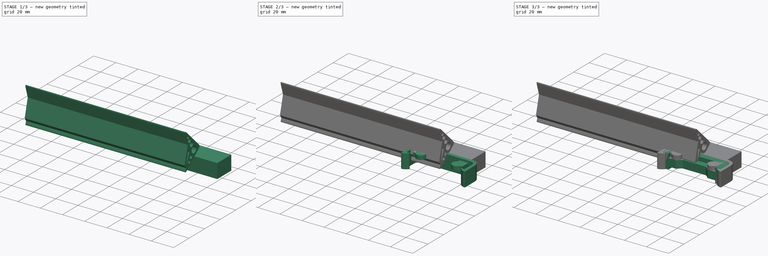
[diagram: build sequence overview — one tinted view per stage of 3, left to right]
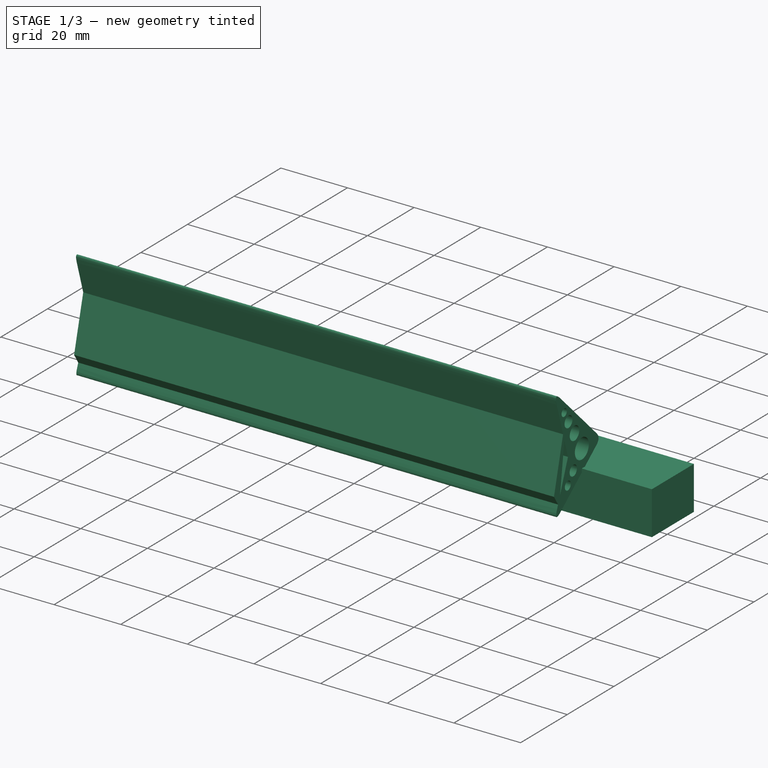
[diagram: stage 1 of 3 — iso view after this stage's code; geometry added in this stage tinted green]
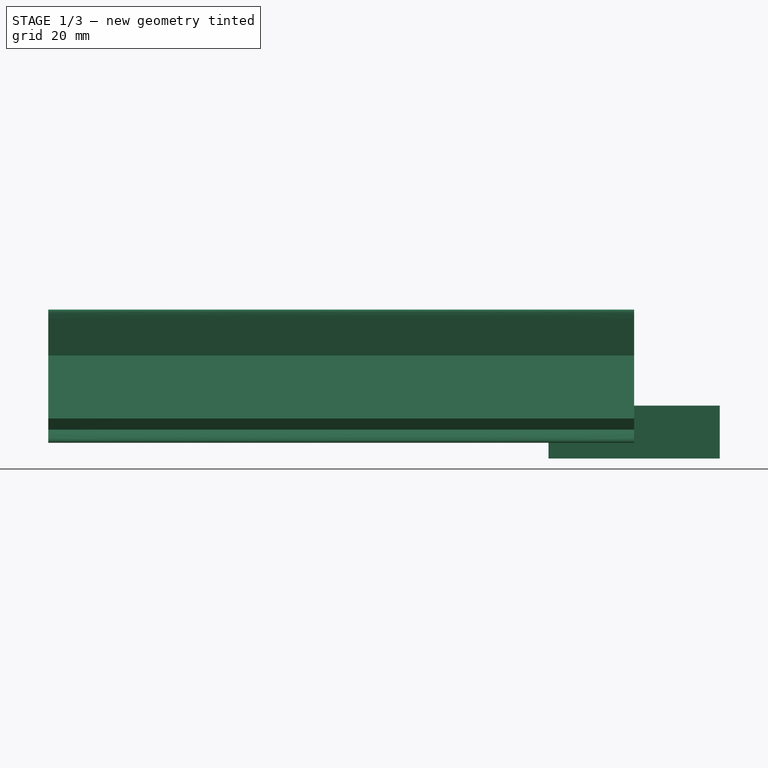
[diagram: stage 1 of 3 — front view after this stage's code; geometry added in this stage tinted green]
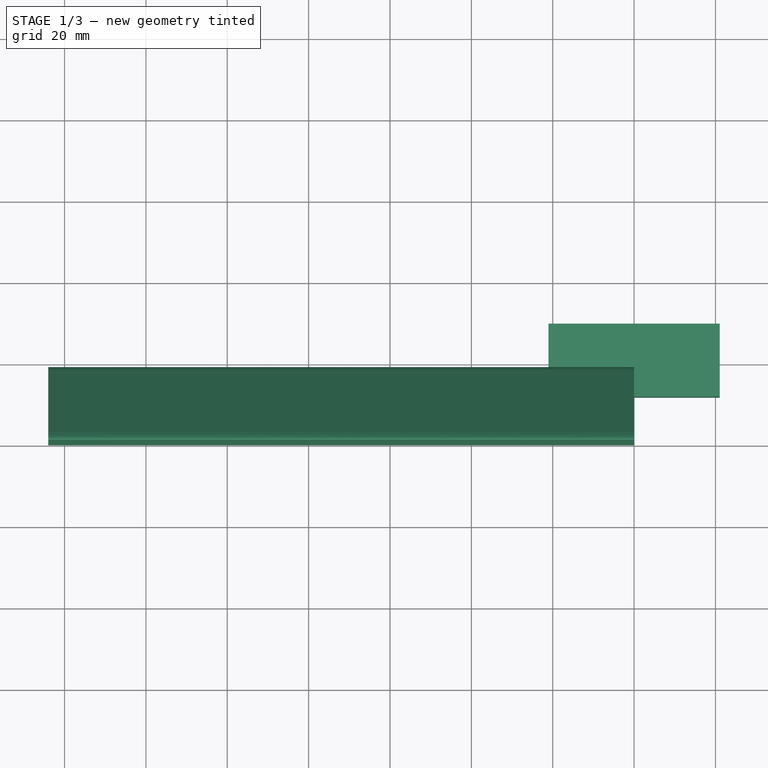
[diagram: stage 1 of 3 — top view after this stage's code; geometry added in this stage tinted green]
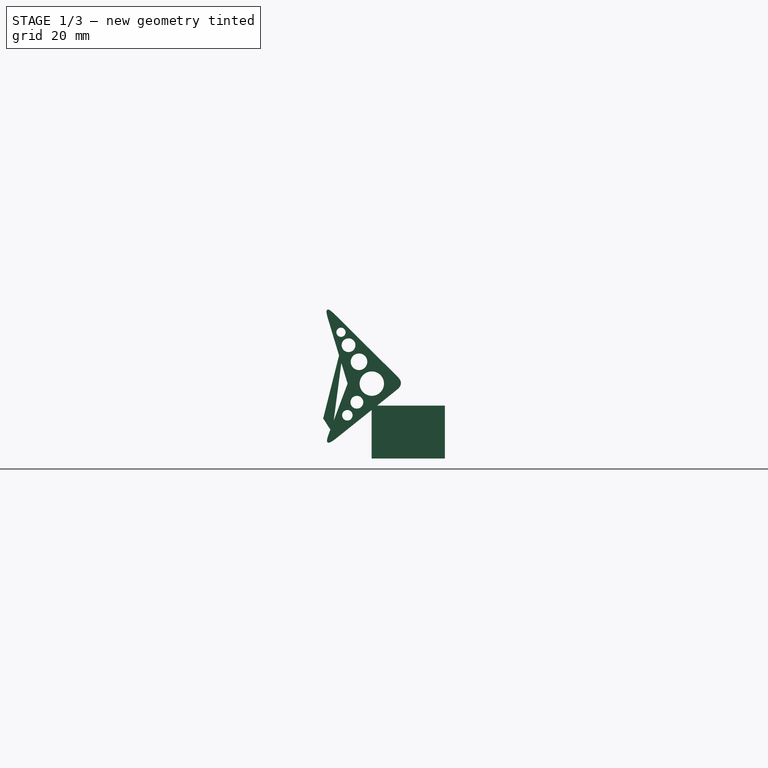
[diagram: stage 1 of 3 — right view after this stage's code; geometry added in this stage tinted green]
FCSTD DOCUMENT  (FreeCAD 0.19R0.19.2)
Label: 015
License: All rights reserved
LicenseURL: http://en.wikipedia.org/wiki/All_rights_reserved
objects: Sketcher::SketchObject×5, Part::Extrusion×5, Part::Box×1
note: 11 computed .brp shape members not serialized (recipe doc carries the construction recipe); baked Part::Feature solids carry a one-line shape summary decoded from their .brp

FEATURE [Part::Box] Box  label="bumpperExtension"
  AttacherType = Attacher::AttachEngine3D
  Height = 13
  Length = 42.1
  Placement = pos=(-21.05,11.9,-2.4) rot=(0,0,1;0rad)
  Width = 18
FEATURE [Sketcher::SketchObject] Sketch004  label="bumpperMain"
  FullyConstrained = true
  Placement = pos=(0,0,0) rot=(0.57735,0.57735,0.57735;2.0944rad)
  sketch-geometry (33):
    g0: Circle CenterX=-3.12329 CenterY=2.49901 CenterZ=0 NormalX=0 NormalY=0 NormalZ=1 AngleXU=0 Radius=1
    g1: Circle CenterX=0 CenterY=0 CenterZ=0 NormalX=0 NormalY=0 NormalZ=1 AngleXU=0 Radius=1
    g2: Circle CenterX=-1.35243 CenterY=3.60648 CenterZ=0 NormalX=0 NormalY=0 NormalZ=1 AngleXU=0 Radius=1
    g3: BSplineCurve PolesCount=3 KnotsCount=2 Degree=2 IsPeriodic=0
    g4: GeomPoint X=-3.12329 Y=2.49901 Z=0
    g5: GeomPoint X=-1.35243 Y=3.60648 Z=0
    g6: LineSegment StartX=-1.35243 StartY=3.60648 StartZ=0 EndX=-1.76142 EndY=4.69712 EndZ=0
    g7: LineSegment StartX=-6 StartY=16 StartZ=0 EndX=-4.46356 EndY=21.0814 EndZ=0
    g8: Circle CenterX=-2.83953 CenterY=33.0261 CenterZ=0 NormalX=0 NormalY=0 NormalZ=1 AngleXU=0 Radius=1
    g9: Circle CenterX=0 CenterY=35.8434 CenterZ=0 NormalX=0 NormalY=0 NormalZ=1 AngleXU=0 Radius=1
    g10: Circle CenterX=-1.15771 CenterY=32.0146 CenterZ=0 NormalX=0 NormalY=0 NormalZ=1 AngleXU=0 Radius=1
    g11: BSplineCurve PolesCount=3 KnotsCount=2 Degree=2 IsPeriodic=0
    g12: GeomPoint X=-2.83953 Y=33.0261 Z=0
    g13: GeomPoint X=-1.15771 Y=32.0146 Z=0
    g14: Circle CenterX=-18.2963 CenterY=17.6904 CenterZ=0 NormalX=0 NormalY=0 NormalZ=1 AngleXU=0 Radius=1
    g15: Circle CenterX=-20 CenterY=16 CenterZ=0 NormalX=0 NormalY=0 NormalZ=1 AngleXU=0 Radius=1
    g16: Circle CenterX=-18.1259 CenterY=14.5008 CenterZ=0 NormalX=0 NormalY=0 NormalZ=1 AngleXU=0 Radius=1
    g17: BSplineCurve PolesCount=3 KnotsCount=2 Degree=2 IsPeriodic=0
    g18: GeomPoint X=-18.2963 Y=17.6904 Z=0
    g19: GeomPoint X=-18.1259 Y=14.5008 Z=0
    g20: LineSegment StartX=-18.2963 StartY=17.6904 StartZ=0 EndX=-2.83953 EndY=33.0261 EndZ=0
    g21: LineSegment StartX=-18.1259 StartY=14.5008 StartZ=0 EndX=-3.12329 EndY=2.49901 EndZ=0
    g22: Circle CenterX=-11.9527 CenterY=16 CenterZ=0 NormalX=0 NormalY=0 NormalZ=1 AngleXU=0 Radius=2.99582
    g23: Circle CenterX=-8.803 CenterY=21.3731 CenterZ=0 NormalX=0 NormalY=0 NormalZ=1 AngleXU=0 Radius=2.03939
    g24: Circle CenterX=-6.23123 CenterY=25.4475 CenterZ=0 NormalX=0 NormalY=0 NormalZ=1 AngleXU=0 Radius=1.69309
    g25: Circle CenterX=-4.38186 CenterY=28.6261 CenterZ=0 NormalX=0 NormalY=0 NormalZ=1 AngleXU=0 Radius=1.13029
    g26: Circle CenterX=-8.28033 CenterY=11.4296 CenterZ=0 NormalX=0 NormalY=0 NormalZ=1 AngleXU=0 Radius=1.57213
    g27: Circle CenterX=-5.93972 CenterY=8.22213 CenterZ=0 NormalX=0 NormalY=0 NormalZ=1 AngleXU=0 Radius=1.28743
    g28: LineSegment StartX=-4.46356 StartY=21.0814 StartZ=0 EndX=-2.58497 EndY=6.89324 EndZ=0
    g29: LineSegment StartX=0 StartY=7.44228 StartZ=0 EndX=-3.90437 EndY=22.9307 EndZ=0
    g30: LineSegment StartX=0 StartY=7.44228 StartZ=0 EndX=-1.76142 EndY=4.69712 EndZ=0
    g31: LineSegment StartX=-3.90437 StartY=22.9307 StartZ=0 EndX=-1.15771 EndY=32.0146 EndZ=0
    g32: LineSegment StartX=-2.58497 StartY=6.89324 StartZ=0 EndX=-6 EndY=16 EndZ=0
  constraints (54):
    c: Weight(g0) = 1
    c: Equal(g0,g1)
    c: Equal(g0,g2)
    c: InternalAlignment(g0,g3)
    c: InternalAlignment(g1,g3)
    c: InternalAlignment(g2,g3)
    c: InternalAlignment(g4,g3)
    c: InternalAlignment(g5,g3)
    c: Block(g3)
    c: Coincident(g6,g3)
    c: Block(g6)
    c: Coincident(g7,g32)
    c: Weight(g8) = 1
    c: Equal(g8,g9)
    c: Equal(g8,g10)
    c: InternalAlignment(g8,g11)
    c: InternalAlignment(g9,g11)
    c: InternalAlignment(g10,g11)
    c: InternalAlignment(g12,g11)
    c: InternalAlignment(g13,g11)
    c: Block(g11)
    c: Block(g7)
    c: Weight(g14) = 1
    c: Equal(g14,g15)
    c: Equal(g14,g16)
    c: InternalAlignment(g14,g17)
    c: InternalAlignment(g15,g17)
    c: InternalAlignment(g16,g17)
    c: InternalAlignment(g18,g17)
    c: InternalAlignment(g19,g17)
    c: Block(g17)
    c: Coincident(g20,g17)
    c: Coincident(g20,g11)
    c: Coincident(g21,g17)
    c: Coincident(g21,g3)
    c: PointOnObject(g29,g-2)
    c: Coincident(g30,g29)
    c: Block(g29)
    c: Block(g30)
    c: Block(g28)
    c: Block(g27)
    c: Block(g26)
    c: Block(g22)
    c: Block(g23)
    c: Block(g24)
    c: Block(g25)
    c: Coincident(g7,g28)
    c: Coincident(g31,g29)
    c: Tangent(g7,g31)
    c: Coincident(g6,g30)
    c: Coincident(g32,g28)
    c: Tangent(g6,g32)
    c: Block(g32)
    c: Block(g31)
FEATURE [Part::Extrusion] Extrude004  label="bumpperMain001"
  Base = -> Sketch004
  Dir = (1,0,0)
  DirMode = 2
  FaceMakerClass = Part::FaceMakerBullseye
  LengthFwd = 144
  LengthRev = 0
  Placement = pos=(0,0,0) rot=(0,0,1;3.14159rad)
  Solid = true
  Symmetric = false
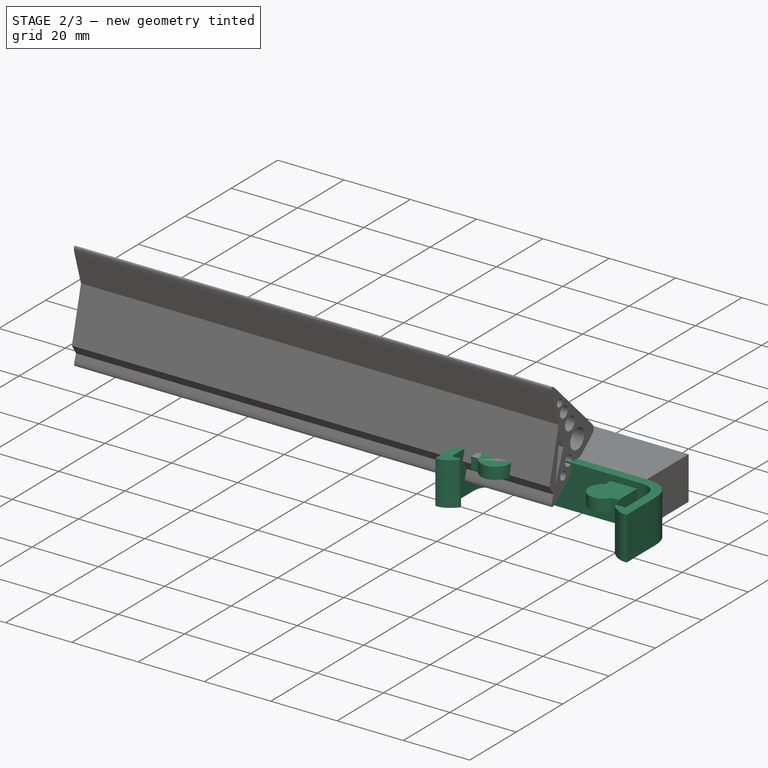
[diagram: stage 2 of 3 — iso view after this stage's code; geometry added in this stage tinted green]
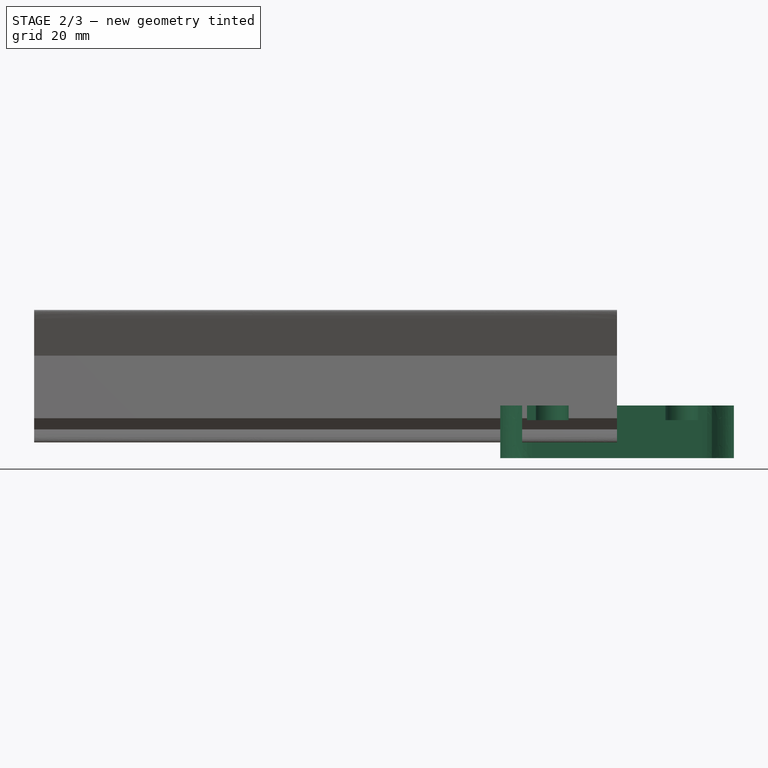
[diagram: stage 2 of 3 — front view after this stage's code; geometry added in this stage tinted green]
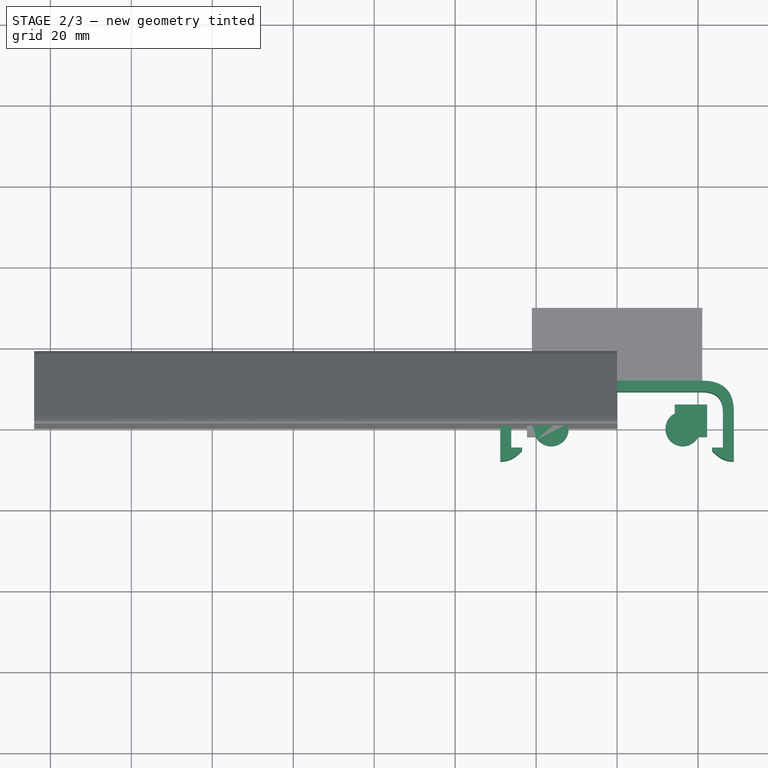
[diagram: stage 2 of 3 — top view after this stage's code; geometry added in this stage tinted green]
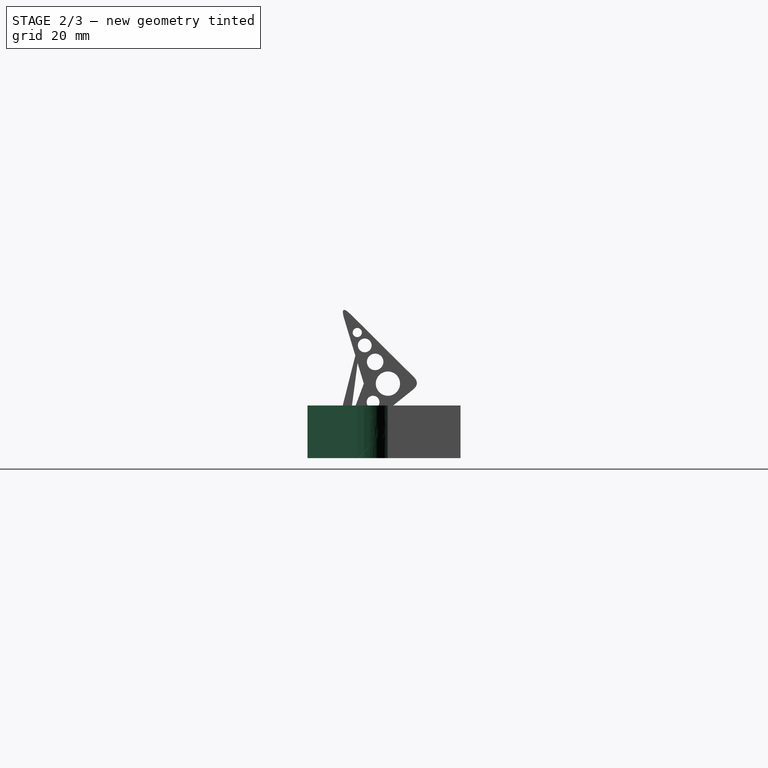
[diagram: stage 2 of 3 — right view after this stage's code; geometry added in this stage tinted green]
FEATURE [Sketcher::SketchObject] Sketch002  label="attatchmentPieceEndScrewHoleCaps"
  FullyConstrained = true
  sketch-geometry (10):
    g0: ArcOfCircle CenterX=16.25 CenterY=0 CenterZ=0 NormalX=0 NormalY=0 NormalZ=1 AngleXU=0 Radius=4.3 StartAngle=2.05456 EndAngle=5.79942
    g1: ArcOfCircle CenterX=-16.25 CenterY=0 CenterZ=0 NormalX=0 NormalY=0 NormalZ=1 AngleXU=0 Radius=4.3 StartAngle=3.62536 EndAngle=7.37022
    g2: LineSegment StartX=14.25 StartY=3.80657 StartZ=0 EndX=14.25 EndY=6 EndZ=0
    g3: LineSegment StartX=20.0566 StartY=-2 StartZ=0 EndX=22.25 EndY=-2 EndZ=0
    g4: LineSegment StartX=-22.25 StartY=-2 StartZ=0 EndX=-20.0566 EndY=-2 EndZ=0
    g5: LineSegment StartX=-14.25 StartY=3.80657 StartZ=0 EndX=-14.25 EndY=6 EndZ=0
    g6: LineSegment StartX=-14.25 StartY=6 StartZ=0 EndX=-22.25 EndY=6 EndZ=0
    g7: LineSegment StartX=-22.25 StartY=-2 StartZ=0 EndX=-22.25 EndY=6 EndZ=0
    g8: LineSegment StartX=22.25 StartY=-2 StartZ=0 EndX=22.25 EndY=6 EndZ=0
    g9: LineSegment StartX=14.25 StartY=6 StartZ=0 EndX=22.25 EndY=6 EndZ=0
  constraints (25):
    c: Block(g1)
    c: Block(g0)
    c: Vertical(g2)
    c: Horizontal(g3)
    c: Horizontal(g4)
    c: Vertical(g5)
    c: Coincident(g6,g5)
    c: Horizontal(g6)
    c: Coincident(g7,g4)
    c: Vertical(g7)
    c: Coincident(g8,g3)
    c: Vertical(g8)
    c: Coincident(g9,g2)
    c: Horizontal(g9)
    c: Coincident(g7,g6)
    c: Coincident(g8,g9)
    c: Block(g9)
    c: Block(g8)
    c: Block(g6)
    c: Block(g7)
    c: Coincident(g1,g4)
    c: Coincident(g1,g5)
    c: Coincident(g0,g2)
    c: Coincident(g0,g3)
    c: Block(g2)
FEATURE [Part::Extrusion] Extrude002  label="attatchmentPieceEndScrewHoleCaps001"
  Base = -> Sketch002
  Dir = (0,0,1)
  DirMode = 2
  FaceMakerClass = Part::FaceMakerBullseye
  LengthFwd = 3.6
  LengthRev = 0
  Placement = pos=(0,0,7) rot=(0,0,1;0rad)
  Solid = true
  Symmetric = false
FEATURE [Sketcher::SketchObject] Sketch003  label="mainBumpperPieceAttatchment"
  FullyConstrained = true
  sketch-geometry (50):
    g0: Circle CenterX=28.85 CenterY=4.3 CenterZ=0 NormalX=0 NormalY=0 NormalZ=1 AngleXU=0 Radius=1
    g1: Circle CenterX=28.85 CenterY=11.9 CenterZ=0 NormalX=0 NormalY=0 NormalZ=1 AngleXU=0 Radius=1
    g2: Circle CenterX=21.05 CenterY=11.9 CenterZ=0 NormalX=0 NormalY=0 NormalZ=1 AngleXU=0 Radius=1
    g3: BSplineCurve PolesCount=3 KnotsCount=2 Degree=2 IsPeriodic=0
    g4: GeomPoint X=28.85 Y=4.3 Z=0
    g5: GeomPoint X=21.05 Y=11.9 Z=0
    g6: Circle CenterX=-28.85 CenterY=4.3 CenterZ=0 NormalX=0 NormalY=0 NormalZ=1 AngleXU=0 Radius=1
    g7: Circle CenterX=-28.85 CenterY=11.9 CenterZ=0 NormalX=0 NormalY=0 NormalZ=1 AngleXU=0 Radius=1
    g8: Circle CenterX=-21.05 CenterY=11.9 CenterZ=0 NormalX=0 NormalY=0 NormalZ=1 AngleXU=0 Radius=1
    g9: BSplineCurve PolesCount=3 KnotsCount=2 Degree=2 IsPeriodic=0
    g10: GeomPoint X=-28.85 Y=4.3 Z=0
    g11: GeomPoint X=-21.05 Y=11.9 Z=0
    g12: LineSegment StartX=-28.85 StartY=4.3 StartZ=0 EndX=-28.85 EndY=-4.3 EndZ=0
    g13: LineSegment StartX=-21.05 StartY=11.9 StartZ=0 EndX=21.05 EndY=11.9 EndZ=0
    g14: LineSegment StartX=28.85 StartY=4.3 StartZ=0 EndX=28.85 EndY=-4.3 EndZ=0
    g15: Circle CenterX=21.05 CenterY=9.2 CenterZ=0 NormalX=0 NormalY=0 NormalZ=1 AngleXU=0 Radius=1
    g16: Circle CenterX=26.15 CenterY=9.2 CenterZ=0 NormalX=0 NormalY=0 NormalZ=1 AngleXU=0 Radius=1
    g17: Circle CenterX=26.15 CenterY=4.3 CenterZ=0 NormalX=0 NormalY=0 NormalZ=1 AngleXU=0 Radius=1
    g18: BSplineCurve PolesCount=3 KnotsCount=2 Degree=2 IsPeriodic=0
    g19: GeomPoint X=21.05 Y=9.2 Z=0
    g20: GeomPoint X=26.15 Y=4.3 Z=0
    g21: Circle CenterX=-21.05 CenterY=9.2 CenterZ=0 NormalX=0 NormalY=0 NormalZ=1 AngleXU=0 Radius=1
    g22: Circle CenterX=-26.15 CenterY=9.19666 CenterZ=0 NormalX=0 NormalY=0 NormalZ=1 AngleXU=0 Radius=1
    g23: Circle CenterX=-26.15 CenterY=4.3 CenterZ=0 NormalX=0 NormalY=0 NormalZ=1 AngleXU=0 Radius=1
    g24: BSplineCurve PolesCount=3 KnotsCount=2 Degree=2 IsPeriodic=0
    g25: GeomPoint X=-21.05 Y=9.2 Z=0
    g26: GeomPoint X=-26.15 Y=4.3 Z=0
    g27: LineSegment StartX=-26.15 StartY=-4.3 StartZ=0 EndX=-26.15 EndY=4.3 EndZ=0
    g28: LineSegment StartX=-21.05 StartY=9.2 StartZ=0 EndX=21.05 EndY=9.2 EndZ=0
    g29: LineSegment StartX=26.15 StartY=-4.3 StartZ=0 EndX=26.15 EndY=4.3 EndZ=0
    g30: LineSegment StartX=26.15 StartY=-4.3 StartZ=0 EndX=26.15 EndY=-4.6 EndZ=0
    g31: LineSegment StartX=-26.15 StartY=-4.3 StartZ=0 EndX=-26.15 EndY=-4.6 EndZ=0
    g32: LineSegment StartX=-26.15 StartY=-4.6 StartZ=0 EndX=-23.45 EndY=-4.6 EndZ=0
    g33: LineSegment StartX=23.45 StartY=-4.6 StartZ=0 EndX=26.15 EndY=-4.6 EndZ=0
    g34: LineSegment StartX=28.85 StartY=-4.3 StartZ=0 EndX=28.85 EndY=-7.9 EndZ=0
    g35: LineSegment StartX=-28.85 StartY=-4.3 StartZ=0 EndX=-28.85 EndY=-7.9 EndZ=0
    g36: LineSegment StartX=-23.45 StartY=-4.6 StartZ=0 EndX=-23.45 EndY=-5.3 EndZ=0
    g37: LineSegment StartX=23.45 StartY=-4.6 StartZ=0 EndX=23.45 EndY=-5.3 EndZ=0
    g38: Circle CenterX=-28.85 CenterY=-7.9 CenterZ=0 NormalX=0 NormalY=0 NormalZ=1 AngleXU=0 Radius=1
    g39: Circle CenterX=-26.15 CenterY=-8.2 CenterZ=0 NormalX=0 NormalY=0 NormalZ=1 AngleXU=0 Radius=1
    g40: Circle CenterX=-23.45 CenterY=-5.3 CenterZ=0 NormalX=0 NormalY=0 NormalZ=1 AngleXU=0 Radius=1
    g41: BSplineCurve PolesCount=3 KnotsCount=2 Degree=2 IsPeriodic=0
    g42: GeomPoint X=-28.85 Y=-7.9 Z=0
    g43: GeomPoint X=-23.45 Y=-5.3 Z=0
    g44: Circle CenterX=28.85 CenterY=-7.9 CenterZ=0 NormalX=0 NormalY=0 NormalZ=1 AngleXU=0 Radius=1
    g45: Circle CenterX=26.15 CenterY=-8.2 CenterZ=0 NormalX=0 NormalY=0 NormalZ=1 AngleXU=0 Radius=1
    g46: Circle CenterX=23.45 CenterY=-5.3 CenterZ=0 NormalX=0 NormalY=0 NormalZ=1 AngleXU=0 Radius=1
    g47: BSplineCurve PolesCount=3 KnotsCount=2 Degree=2 IsPeriodic=0
    g48: GeomPoint X=28.85 Y=-7.9 Z=0
    g49: GeomPoint X=23.45 Y=-5.3 Z=0
  constraints (94):
    c: Weight(g0) = 1
    c: Equal(g0,g1)
    c: Equal(g0,g2)
    c: InternalAlignment(g0,g3)
    c: InternalAlignment(g1,g3)
    c: InternalAlignment(g2,g3)
    c: InternalAlignment(g4,g3)
    c: InternalAlignment(g5,g3)
    c: Weight(g6) = 1
    c: Equal(g6,g7)
    c: Equal(g6,g8)
    c: InternalAlignment(g6,g9)
    c: InternalAlignment(g7,g9)
    c: InternalAlignment(g8,g9)
    c: InternalAlignment(g10,g9)
    c: InternalAlignment(g11,g9)
    c: Block(g3)
    c: Block(g9)
    c: Vertical(g12)
    c: Horizontal(g13)
    c: Vertical(g14)
    c: Block(g14)
    c: Block(g13)
    c: Block(g12)
    c: Weight(g15) = 1
    c: Equal(g15,g16)
    c: Equal(g15,g17)
    c: InternalAlignment(g15,g18)
    c: InternalAlignment(g16,g18)
    c: InternalAlignment(g17,g18)
    c: InternalAlignment(g19,g18)
    c: InternalAlignment(g20,g18)
    c: Weight(g21) = 1
    c: Equal(g21,g22)
    c: Equal(g21,g23)
    c: InternalAlignment(g21,g24)
    c: InternalAlignment(g22,g24)
    c: InternalAlignment(g23,g24)
    c: InternalAlignment(g25,g24)
    c: InternalAlignment(g26,g24)
    c: Vertical(g27)
    c: Horizontal(g28)
    c: Vertical(g29)
    c: Block(g18)
    c: Block(g29)
    c: Block(g28)
    c: Block(g24)
    c: Block(g27)
    c: Coincident(g30,g29)
    c: Vertical(g30)
    c: Distance(g30) = 0.3
    c: Vertical(g31)
    c: Equal(g30,g31) = 0.3
    c: Coincident(g31,g27)
    c: Coincident(g32,g31)
    c: Horizontal(g32)
    c: Distance(g32) = 2.7
    c: Horizontal(g33)
    c: Equal(g32,g33) = 2.3
    c: Coincident(g33,g30)
    c: Coincident(g34,g14)
    c: Vertical(g34)
    c: Distance(g34) = 3.6
    c: Vertical(g35)
    c: Equal(g34,g35) = 3.6
    c: Coincident(g35,g12)
    c: Coincident(g36,g32)
    c: Vertical(g36)
    c: Distance(g36) = 0.7
    c: Vertical(g37)
    c: Equal(g36,g37) = 0.7
    c: Coincident(g37,g33)
    c: Coincident(g41,g35)
    c: Weight(g38) = 1
    c: Equal(g38,g39)
    c: Equal(g38,g40)
    c: Coincident(g41,g36)
    c: InternalAlignment(g38,g41)
    c: InternalAlignment(g39,g41)
    c: InternalAlignment(g40,g41)
    c: InternalAlignment(g42,g41)
    c: InternalAlignment(g43,g41)
    c: Coincident(g47,g34)
    c: Weight(g44) = 1
    c: Equal(g44,g45)
    c: Equal(g44,g46)
    c: Coincident(g47,g37)
    c: InternalAlignment(g44,g47)
    c: InternalAlignment(g45,g47)
    c: InternalAlignment(g46,g47)
    c: InternalAlignment(g48,g47)
    c: InternalAlignment(g49,g47)
    c: Block(g47)
    c: Block(g41)
FEATURE [Part::Extrusion] Extrude003  label="mainBumpperPieceAttatchment001"
  Base = -> Sketch003
  Dir = (0,0,1)
  DirMode = 2
  FaceMakerClass = Part::FaceMakerBullseye
  LengthFwd = 13
  LengthRev = 0
  Placement = pos=(0,0,-2.4) rot=(0,0,1;0rad)
  Solid = true
  Symmetric = false
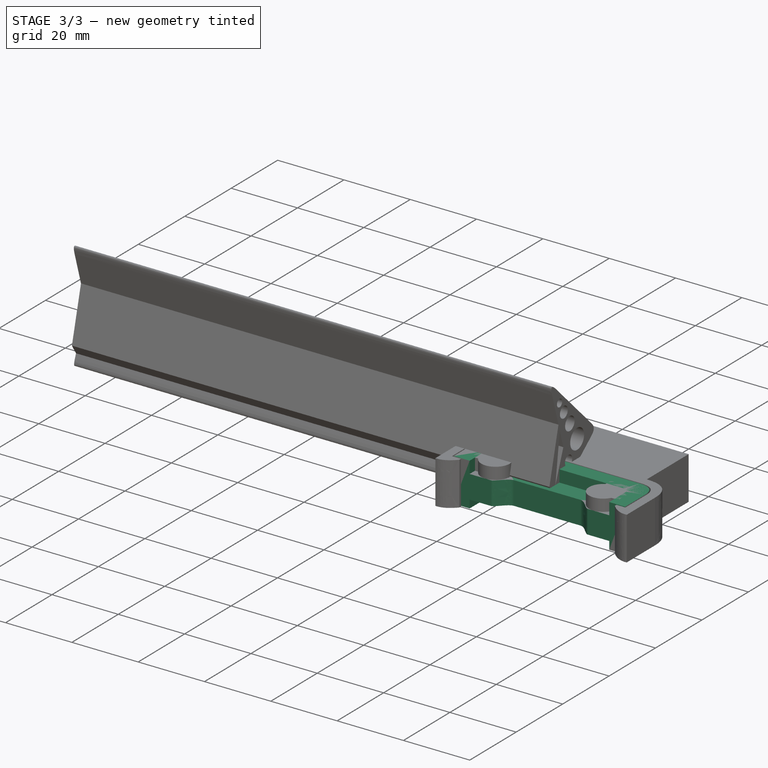
[diagram: stage 3 of 3 — iso view after this stage's code; geometry added in this stage tinted green]
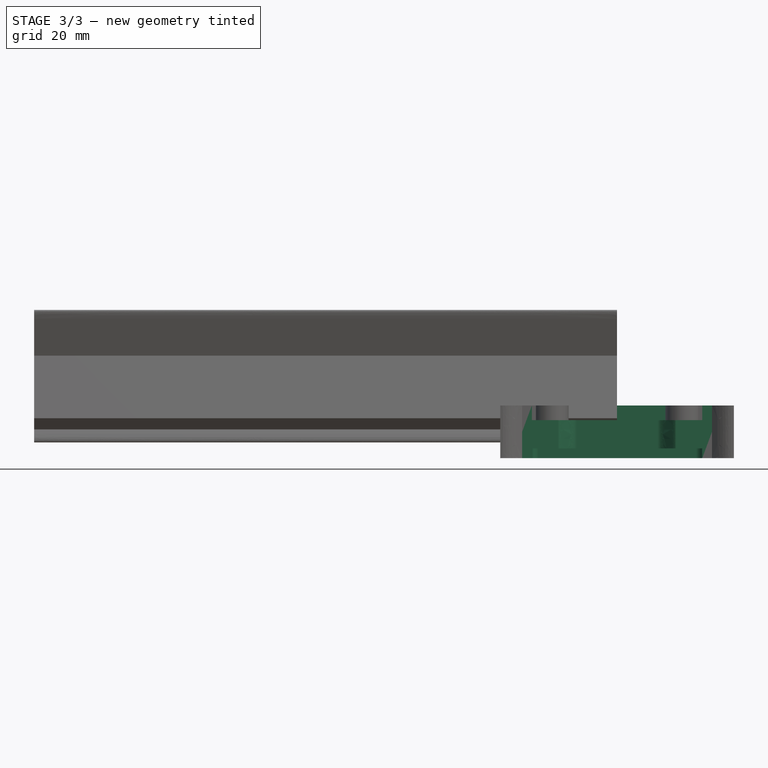
[diagram: stage 3 of 3 — front view after this stage's code; geometry added in this stage tinted green]
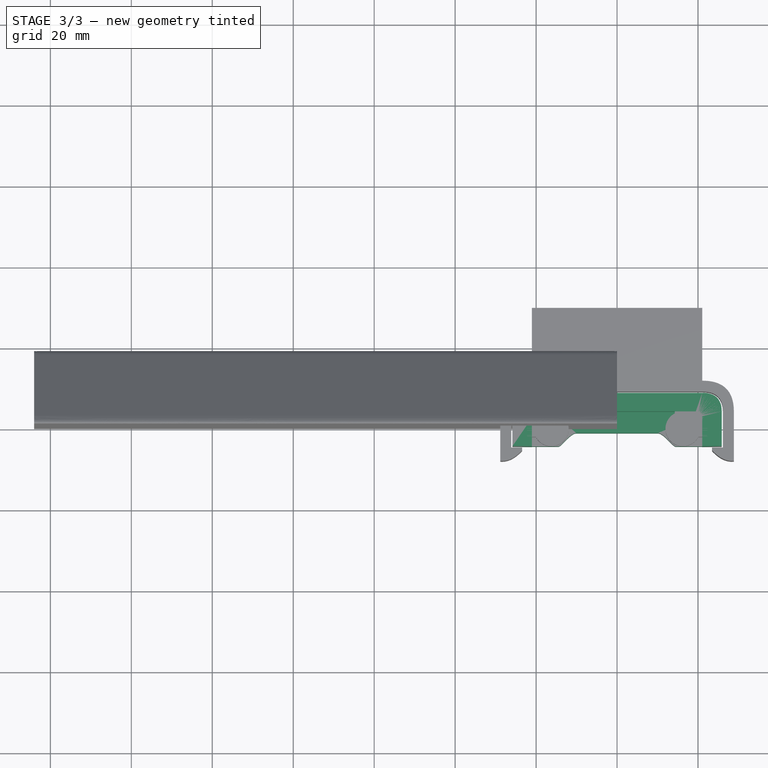
[diagram: stage 3 of 3 — top view after this stage's code; geometry added in this stage tinted green]
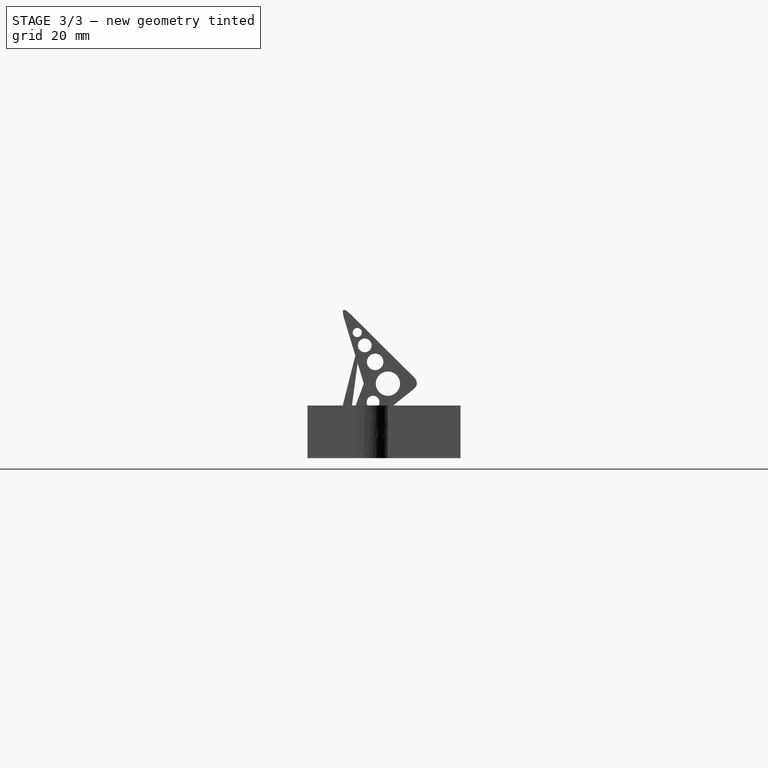
[diagram: stage 3 of 3 — right view after this stage's code; geometry added in this stage tinted green]
FEATURE [Sketcher::SketchObject] Sketch  label="attatchmentPiece"
  FullyConstrained = true
  sketch-geometry (28):
    g0: Circle CenterX=-16.25 CenterY=0 CenterZ=0 NormalX=0 NormalY=0 NormalZ=1 AngleXU=0 Radius=1.5
    g1: Circle CenterX=16.25 CenterY=0 CenterZ=0 NormalX=0 NormalY=0 NormalZ=1 AngleXU=0 Radius=1.5
    g2: LineSegment StartX=21.05 StartY=0 StartZ=0 EndX=21.05 EndY=-1 EndZ=0
    g3: LineSegment StartX=21.05 StartY=-1 StartZ=0 EndX=21.05 EndY=-4.3 EndZ=0
    g4: LineSegment StartX=-21.05 StartY=0 StartZ=0 EndX=-21.05 EndY=-1 EndZ=0
    g5: LineSegment StartX=-21.05 StartY=-1 StartZ=0 EndX=-21.05 EndY=-4.3 EndZ=0
    g6: LineSegment StartX=-21.05 StartY=-4.3 StartZ=0 EndX=-16.25 EndY=-4.3 EndZ=0
    g7: LineSegment StartX=-16.25 StartY=4.3 StartZ=0 EndX=21.05 EndY=4.3 EndZ=0
    g8: LineSegment StartX=-16.25 StartY=4.3 StartZ=0 EndX=-21.05 EndY=4.3 EndZ=0
    g9: LineSegment StartX=-21.05 StartY=0 StartZ=0 EndX=-21.05 EndY=4.3 EndZ=0
    g10: LineSegment StartX=21.05 StartY=0 StartZ=0 EndX=21.05 EndY=4.3 EndZ=0
    g11-g14: Circle x4 (B-spline internal-alignment scaffolding for g15; pole/knot coordinates omitted)
    g15: BSplineCurve PolesCount=4 KnotsCount=2 Degree=3 IsPeriodic=0
    g16: GeomPoint X=-10.05 Y=-1 Z=0
    g17: GeomPoint X=-14.55 Y=-4.3 Z=0
    g18-g21: Circle x4 (B-spline internal-alignment scaffolding for g22; pole/knot coordinates omitted)
    g22: BSplineCurve PolesCount=4 KnotsCount=2 Degree=3 IsPeriodic=0
    g23: GeomPoint X=10.05 Y=-1 Z=0
    g24: GeomPoint X=14.55 Y=-4.3 Z=0
    g25: LineSegment StartX=10.05 StartY=-1 StartZ=0 EndX=-10.05 EndY=-1 EndZ=0
    g26: LineSegment StartX=-16.25 StartY=-4.3 StartZ=0 EndX=-14.55 EndY=-4.3 EndZ=0
    g27: LineSegment StartX=14.55 StartY=-4.3 StartZ=0 EndX=21.05 EndY=-4.3 EndZ=0
  constraints (49):
    c: Block(g1)
    c: Block(g0)
    c: Vertical(g2)
    c: Coincident(g3,g2)
    c: Vertical(g3)
    c: Block(g2)
    c: Vertical(g4)
    c: Block(g4)
    c: Vertical(g5)
    c: Coincident(g5,g4)
    c: Distance(g5) = 3.3
    c: Horizontal(g6)
    c: Coincident(g6,g5)
    c: Distance(g6) = 4.8
    c: Horizontal(g7)
    c: Horizontal(g8)
    c: Vertical(g9)
    c: Coincident(g9,g8)
    c: Vertical(g10)
    c: Coincident(g10,g7)
    c: Block(g7)
    c: Block(g9)
    c: Block(g8)
    c: Block(g10)
    c: Weight(g11) = 1
    c: Equal(g11,g12)
    c: Equal(g11,g13)
    c: Equal(g11,g14)
    c: InternalAlignment(g11-g14 -> g15) x4
    c: InternalAlignment(g16,g15)
    c: InternalAlignment(g17,g15)
    c: Weight(g18) = 1
    c: Equal(g18,g19)
    c: Equal(g18,g20)
    c: Equal(g18,g21)
    c: InternalAlignment(g18-g21 -> g22) x4
    c: InternalAlignment(g23,g22)
    c: InternalAlignment(g24,g22)
    c: Block(g22)
    c: Block(g15)
    c: Coincident(g25,g22)
    c: Coincident(g25,g15)
    c: Horizontal(g25)
    c: Coincident(g26,g6)
    c: Coincident(g26,g15)
    c: Horizontal(g26)
    c: Coincident(g27,g22)
    c: Coincident(g27,g3)
    c: Horizontal(g27)
FEATURE [Part::Extrusion] Extrude  label="attatchmentPiece001"
  Base = -> Sketch
  Dir = (0,0,1)
  DirMode = 2
  FaceMakerClass = Part::FaceMakerBullseye
  LengthFwd = 7
  LengthRev = 0
  Solid = true
  Symmetric = false
FEATURE [Sketcher::SketchObject] Sketch001  label="attatchmentPieceSurround"
  FullyConstrained = true
  sketch-geometry (22):
    g0: LineSegment StartX=-21.05 StartY=-4.3 StartZ=0 EndX=-25.85 EndY=-4.3 EndZ=0
    g1: LineSegment StartX=25.85 StartY=-4.3 StartZ=0 EndX=21.05 EndY=-4.3 EndZ=0
    g2: LineSegment StartX=-25.85 StartY=-4.3 StartZ=0 EndX=-25.85 EndY=4.3 EndZ=0
    g3: LineSegment StartX=25.85 StartY=-4.3 StartZ=0 EndX=25.85 EndY=4.3 EndZ=0
    g4: LineSegment StartX=-21.05 StartY=8.9 StartZ=0 EndX=21.05 EndY=8.9 EndZ=0
    g5: Circle CenterX=-21.05 CenterY=8.9 CenterZ=0 NormalX=0 NormalY=0 NormalZ=1 AngleXU=0 Radius=1
    g6: Circle CenterX=-25.85 CenterY=8.9 CenterZ=0 NormalX=0 NormalY=0 NormalZ=1 AngleXU=0 Radius=1
    g7: Circle CenterX=-25.85 CenterY=4.3 CenterZ=0 NormalX=0 NormalY=0 NormalZ=1 AngleXU=0 Radius=1
    g8: BSplineCurve PolesCount=3 KnotsCount=2 Degree=2 IsPeriodic=0
    g9: GeomPoint X=-21.05 Y=8.9 Z=0
    g10: GeomPoint X=-25.85 Y=4.3 Z=0
    g11: Circle CenterX=21.05 CenterY=8.9 CenterZ=0 NormalX=0 NormalY=0 NormalZ=1 AngleXU=0 Radius=1
    g12: Circle CenterX=25.85 CenterY=8.9 CenterZ=0 NormalX=0 NormalY=0 NormalZ=1 AngleXU=0 Radius=1
    g13: Circle CenterX=25.85 CenterY=4.3 CenterZ=0 NormalX=0 NormalY=0 NormalZ=1 AngleXU=0 Radius=1
    g14: BSplineCurve PolesCount=3 KnotsCount=2 Degree=2 IsPeriodic=0
    g15: GeomPoint X=21.05 Y=8.9 Z=0
    g16: GeomPoint X=25.85 Y=4.3 Z=0
    g17: ArcOfCircle CenterX=-19.45 CenterY=2.7 CenterZ=0 NormalX=0 NormalY=0 NormalZ=1 AngleXU=0 Radius=1.6 StartAngle=1.5708 EndAngle=3.14159
    g18: ArcOfCircle CenterX=19.45 CenterY=2.7 CenterZ=0 NormalX=0 NormalY=0 NormalZ=1 AngleXU=0 Radius=1.6 StartAngle=0 EndAngle=1.5708
    g19: LineSegment StartX=-19.45 StartY=4.3 StartZ=0 EndX=19.45 EndY=4.3 EndZ=0
    g20: LineSegment StartX=21.05 StartY=2.7 StartZ=0 EndX=21.05 EndY=-4.3 EndZ=0
    g21: LineSegment StartX=-21.05 StartY=2.7 StartZ=0 EndX=-21.05 EndY=-4.3 EndZ=0
  constraints (48):
    c: Horizontal(g0)
    c: Distance(g0) = 4.8
    c: Horizontal(g1)
    c: Equal(g0,g1) = 4.8
    c: Coincident(g2,g0)
    c: Vertical(g2)
    c: Distance(g2) = 8.6
    c: Vertical(g3)
    c: Equal(g2,g3) = 8.6
    c: Coincident(g3,g1)
    c: Horizontal(g4)
    c: Distance(g4) = 42.1
    c: Block(g4)
    c: Coincident(g8,g4)
    c: Weight(g5) = 1
    c: Equal(g5,g6)
    c: Equal(g5,g7)
    c: Coincident(g8,g2)
    c: InternalAlignment(g5,g8)
    c: InternalAlignment(g6,g8)
    c: InternalAlignment(g7,g8)
    c: InternalAlignment(g9,g8)
    c: InternalAlignment(g10,g8)
    c: Coincident(g14,g4)
    c: Weight(g11) = 1
    c: Equal(g11,g12)
    c: Equal(g11,g13)
    c: Coincident(g14,g3)
    c: InternalAlignment(g11,g14)
    c: InternalAlignment(g12,g14)
    c: InternalAlignment(g13,g14)
    c: InternalAlignment(g15,g14)
    c: InternalAlignment(g16,g14)
    c: Block(g1)
    c: Block(g2)
    c: Block(g14)
    c: Block(g8)
    c: Block(g18)
    c: Block(g17)
    c: Coincident(g19,g17)
    c: Coincident(g19,g18)
    c: Horizontal(g19)
    c: Coincident(g20,g18)
    c: Coincident(g20,g1)
    c: Vertical(g20)
    c: Coincident(g21,g17)
    c: Coincident(g21,g0)
    c: Vertical(g21)
FEATURE [Part::Extrusion] Extrude001  label="attatchmentPieceSurround001"
  Base = -> Sketch001
  Dir = (0,0,1)
  DirMode = 2
  FaceMakerClass = Part::FaceMakerBullseye
  LengthFwd = 13
  LengthRev = 0
  Placement = pos=(0,0,-2.4) rot=(0,0,1;0rad)
  Solid = true
  Symmetric = false
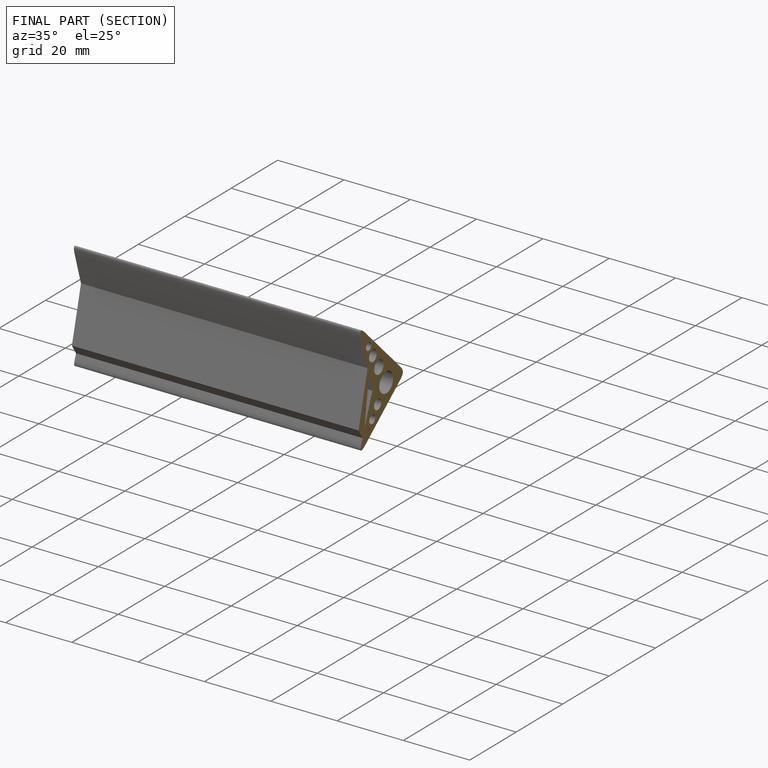
[diagram: finished part — half-section view (interior)]
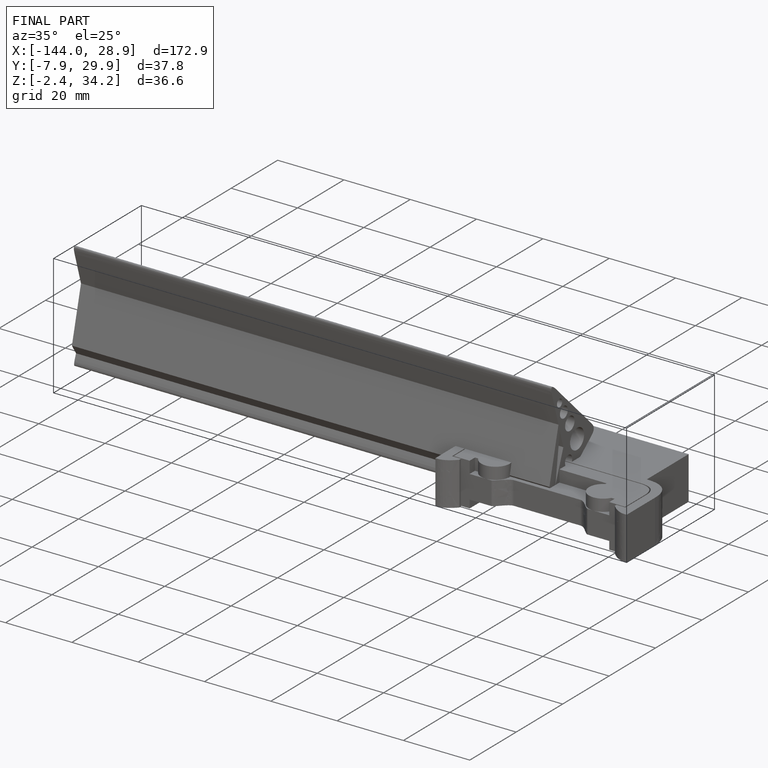
[diagram: finished part — iso view with bounding-box wireframe]
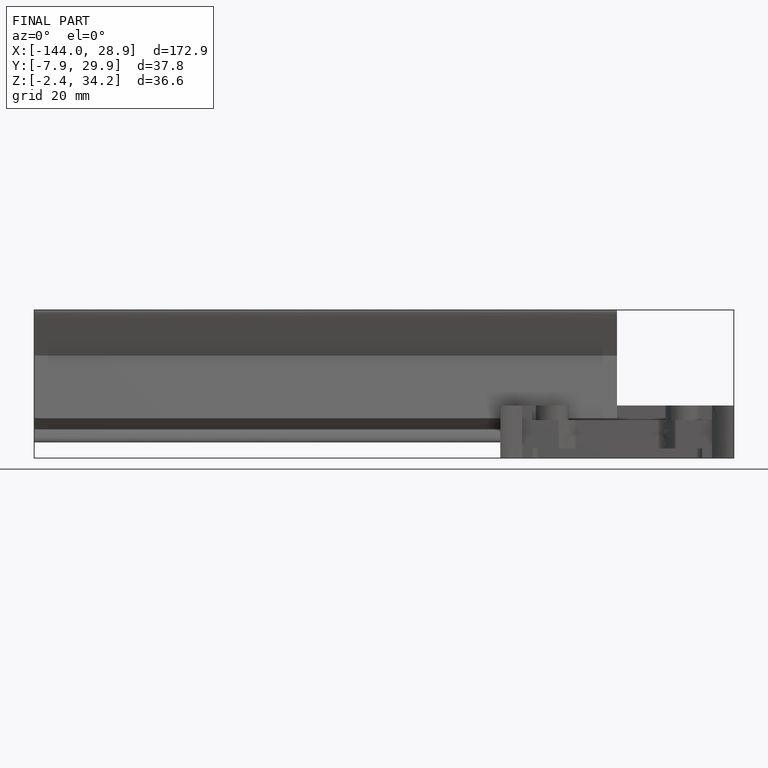
[diagram: finished part — front view with bounding-box wireframe]
